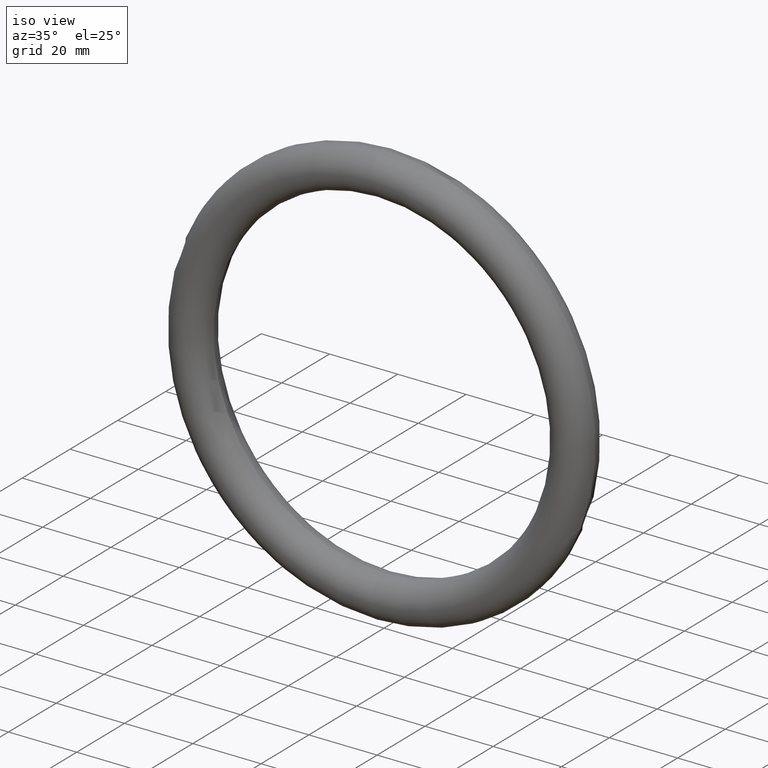
[diagram: clean part render]
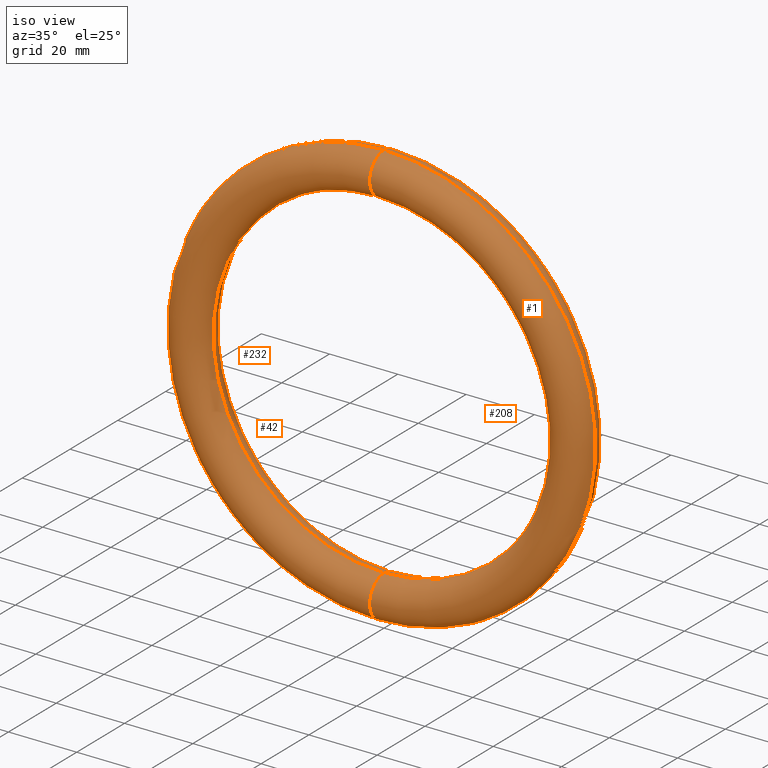
[diagram: same view with one multi-face feature highlighted, each face labeled with its STEP entity id]
A machine part, iso view. The highlighted faces form ONE feature: a constant-radius fillet chain: 4 tangent blend faces with common blend radius 6 mm. The faces share edges in the B-rep.
Their STEP definitions:
[1] entity #232 (Torus):
#3 = ORIENTED_EDGE ( 'NONE', *, *, #117, .T. ) ;
#8 = ORIENTED_EDGE ( 'NONE', *, *, #238, .F. ) ;
#26 = EDGE_CURVE ( 'NONE', #192, #32, #93, .T. ) ;
#32 = VERTEX_POINT ( 'NONE', #168 ) ;
#37 = FACE_OUTER_BOUND ( 'NONE', #227, .T. ) ;
#41 = ORIENTED_EDGE ( 'NONE', *, *, #246, .F. ) ;
#46 = DIRECTION ( 'NONE',  ( 0.000000000000000000, 0.000000000000000000, 1.000000000000000000 ) ) ;
#48 = DIRECTION ( 'NONE',  ( -1.000000000000000000, 0.000000000000000000, 0.000000000000000000 ) ) ;
#53 = CIRCLE ( 'NONE', #110, 5.999999999999998224 ) ;
#54 = AXIS2_PLACEMENT_3D ( 'NONE', #126, #234, #90 ) ;
#61 = DIRECTION ( 'NONE',  ( 0.000000000000000000, 0.000000000000000000, -1.000000000000000000 ) ) ;
#69 = CARTESIAN_POINT ( 'NONE',  ( 0.000000000000000000, 0.000000000000000000, -56.00000000000000000 ) ) ;
#81 = VERTEX_POINT ( 'NONE', #212 ) ;
#90 = DIRECTION ( 'NONE',  ( 0.000000000000000000, 0.000000000000000000, -1.000000000000000000 ) ) ;
#93 = CIRCLE ( 'NONE', #250, 62.00000000000000000 ) ;
#109 = DIRECTION ( 'NONE',  ( 0.000000000000000000, 0.000000000000000000, -1.000000000000000000 ) ) ;
#110 = AXIS2_PLACEMENT_3D ( 'NONE', #69, #48, #46 ) ;
#117 = EDGE_CURVE ( 'NONE', #32, #81, #53, .T. ) ;
#126 = CARTESIAN_POINT ( 'NONE',  ( 0.000000000000000000, 0.000000000000000000, 0.000000000000000000 ) ) ;
#127 = AXIS2_PLACEMENT_3D ( 'NONE', #172, #148, #61 ) ;
#137 = TOROIDAL_SURFACE ( 'NONE', #54, 56.00000000000000000, 5.999999999999994671 ) ;
#140 = AXIS2_PLACEMENT_3D ( 'NONE', #197, #160, #245 ) ;
#141 = CIRCLE ( 'NONE', #140, 5.999999999999998224 ) ;
#142 = DIRECTION ( 'NONE',  ( -0.000000000000000000, -1.000000000000000000, -0.000000000000000000 ) ) ;
#148 = DIRECTION ( 'NONE',  ( -0.000000000000000000, -1.000000000000000000, -0.000000000000000000 ) ) ;
#150 = CARTESIAN_POINT ( 'NONE',  ( 7.592810154713590230E-15, 0.000000000000000000, 62.00000000000000000 ) ) ;
#160 = DIRECTION ( 'NONE',  ( 1.000000000000000000, 0.000000000000000000, -1.224646799147353207E-16 ) ) ;
#164 = CIRCLE ( 'NONE', #127, 50.00000000000000000 ) ;
#168 = CARTESIAN_POINT ( 'NONE',  ( 0.000000000000000000, 0.000000000000000000, -62.00000000000000000 ) ) ;
#172 = CARTESIAN_POINT ( 'NONE',  ( 0.000000000000000000, 7.347880794884112834E-16, 0.000000000000000000 ) ) ;
#192 = VERTEX_POINT ( 'NONE', #150 ) ;
#197 = CARTESIAN_POINT ( 'NONE',  ( 6.858022075225178552E-15, 0.000000000000000000, 56.00000000000000000 ) ) ;
#212 = CARTESIAN_POINT ( 'NONE',  ( 0.000000000000000000, 0.000000000000000000, -50.00000000000000000 ) ) ;
#227 = EDGE_LOOP ( 'NONE', ( #41, #237, #3, #8 ) ) ;
#232 = ADVANCED_FACE ( 'NONE', ( #37 ), #137, .T. ) ;
#234 = DIRECTION ( 'NONE',  ( -0.000000000000000000, -1.000000000000000000, -0.000000000000000000 ) ) ;
#235 = CARTESIAN_POINT ( 'NONE',  ( 6.123233995736766874E-15, 0.000000000000000000, 50.00000000000000000 ) ) ;
#237 = ORIENTED_EDGE ( 'NONE', *, *, #26, .T. ) ;
#238 = EDGE_CURVE ( 'NONE', #240, #81, #164, .T. ) ;
#240 = VERTEX_POINT ( 'NONE', #235 ) ;
#245 = DIRECTION ( 'NONE',  ( -1.224646799147352221E-16, 0.000000000000000000, -1.000000000000000000 ) ) ;
#246 = EDGE_CURVE ( 'NONE', #192, #240, #141, .T. ) ;
#250 = AXIS2_PLACEMENT_3D ( 'NONE', #270, #142, #109 ) ;
#270 = CARTESIAN_POINT ( 'NONE',  ( 0.000000000000000000, 0.000000000000000000, 0.000000000000000000 ) ) ;
[2] entity #42 (Torus):
#15 = EDGE_CURVE ( 'NONE', #240, #192, #71, .T. ) ;
#26 = EDGE_CURVE ( 'NONE', #192, #32, #93, .T. ) ;
#32 = VERTEX_POINT ( 'NONE', #168 ) ;
#40 = DIRECTION ( 'NONE',  ( 1.000000000000000000, 0.000000000000000000, -1.224646799147353207E-16 ) ) ;
#42 = ADVANCED_FACE ( 'NONE', ( #196 ), #170, .T. ) ;
#44 = EDGE_CURVE ( 'NONE', #81, #32, #252, .T. ) ;
#61 = DIRECTION ( 'NONE',  ( 0.000000000000000000, 0.000000000000000000, -1.000000000000000000 ) ) ;
#68 = DIRECTION ( 'NONE',  ( -1.224646799147352221E-16, 0.000000000000000000, -1.000000000000000000 ) ) ;
#71 = CIRCLE ( 'NONE', #269, 5.999999999999998224 ) ;
#72 = DIRECTION ( 'NONE',  ( 0.000000000000000000, 0.000000000000000000, -1.000000000000000000 ) ) ;
#81 = VERTEX_POINT ( 'NONE', #212 ) ;
#88 = DIRECTION ( 'NONE',  ( -1.000000000000000000, 0.000000000000000000, 0.000000000000000000 ) ) ;
#93 = CIRCLE ( 'NONE', #250, 62.00000000000000000 ) ;
#109 = DIRECTION ( 'NONE',  ( 0.000000000000000000, 0.000000000000000000, -1.000000000000000000 ) ) ;
#127 = AXIS2_PLACEMENT_3D ( 'NONE', #172, #148, #61 ) ;
#129 = DIRECTION ( 'NONE',  ( 0.000000000000000000, 0.000000000000000000, 1.000000000000000000 ) ) ;
#133 = ORIENTED_EDGE ( 'NONE', *, *, #238, .T. ) ;
#142 = DIRECTION ( 'NONE',  ( -0.000000000000000000, -1.000000000000000000, -0.000000000000000000 ) ) ;
#146 = CARTESIAN_POINT ( 'NONE',  ( 0.000000000000000000, 0.000000000000000000, 0.000000000000000000 ) ) ;
#148 = DIRECTION ( 'NONE',  ( -0.000000000000000000, -1.000000000000000000, -0.000000000000000000 ) ) ;
#150 = CARTESIAN_POINT ( 'NONE',  ( 7.592810154713590230E-15, 0.000000000000000000, 62.00000000000000000 ) ) ;
#161 = AXIS2_PLACEMENT_3D ( 'NONE', #215, #88, #129 ) ;
#164 = CIRCLE ( 'NONE', #127, 50.00000000000000000 ) ;
#168 = CARTESIAN_POINT ( 'NONE',  ( 0.000000000000000000, 0.000000000000000000, -62.00000000000000000 ) ) ;
#170 = TOROIDAL_SURFACE ( 'NONE', #260, 56.00000000000000000, 5.999999999999994671 ) ;
#171 = CARTESIAN_POINT ( 'NONE',  ( 6.858022075225178552E-15, 0.000000000000000000, 56.00000000000000000 ) ) ;
#172 = CARTESIAN_POINT ( 'NONE',  ( 0.000000000000000000, 7.347880794884112834E-16, 0.000000000000000000 ) ) ;
#187 = DIRECTION ( 'NONE',  ( -0.000000000000000000, -1.000000000000000000, -0.000000000000000000 ) ) ;
#189 = EDGE_LOOP ( 'NONE', ( #268, #241, #133, #203 ) ) ;
#192 = VERTEX_POINT ( 'NONE', #150 ) ;
#196 = FACE_OUTER_BOUND ( 'NONE', #189, .T. ) ;
#203 = ORIENTED_EDGE ( 'NONE', *, *, #44, .T. ) ;
#212 = CARTESIAN_POINT ( 'NONE',  ( 0.000000000000000000, 0.000000000000000000, -50.00000000000000000 ) ) ;
#215 = CARTESIAN_POINT ( 'NONE',  ( 0.000000000000000000, 0.000000000000000000, -56.00000000000000000 ) ) ;
#235 = CARTESIAN_POINT ( 'NONE',  ( 6.123233995736766874E-15, 0.000000000000000000, 50.00000000000000000 ) ) ;
#238 = EDGE_CURVE ( 'NONE', #240, #81, #164, .T. ) ;
#240 = VERTEX_POINT ( 'NONE', #235 ) ;
#241 = ORIENTED_EDGE ( 'NONE', *, *, #15, .F. ) ;
#250 = AXIS2_PLACEMENT_3D ( 'NONE', #270, #142, #109 ) ;
#252 = CIRCLE ( 'NONE', #161, 5.999999999999998224 ) ;
#260 = AXIS2_PLACEMENT_3D ( 'NONE', #146, #187, #72 ) ;
#268 = ORIENTED_EDGE ( 'NONE', *, *, #26, .F. ) ;
#269 = AXIS2_PLACEMENT_3D ( 'NONE', #171, #40, #68 ) ;
#270 = CARTESIAN_POINT ( 'NONE',  ( 0.000000000000000000, 0.000000000000000000, 0.000000000000000000 ) ) ;
[3] entity #1 (Torus):
#1 = ADVANCED_FACE ( 'NONE', ( #256 ), #128, .T. ) ;
#4 = DIRECTION ( 'NONE',  ( -0.000000000000000000, -1.000000000000000000, -0.000000000000000000 ) ) ;
#15 = EDGE_CURVE ( 'NONE', #240, #192, #71, .T. ) ;
#25 = CIRCLE ( 'NONE', #213, 62.00000000000000000 ) ;
#32 = VERTEX_POINT ( 'NONE', #168 ) ;
#40 = DIRECTION ( 'NONE',  ( 1.000000000000000000, 0.000000000000000000, -1.224646799147353207E-16 ) ) ;
#43 = DIRECTION ( 'NONE',  ( -0.000000000000000000, -1.000000000000000000, -0.000000000000000000 ) ) ;
#44 = EDGE_CURVE ( 'NONE', #81, #32, #252, .T. ) ;
#49 = DIRECTION ( 'NONE',  ( 0.000000000000000000, 0.000000000000000000, -1.000000000000000000 ) ) ;
#62 = AXIS2_PLACEMENT_3D ( 'NONE', #186, #43, #206 ) ;
#68 = DIRECTION ( 'NONE',  ( -1.224646799147352221E-16, 0.000000000000000000, -1.000000000000000000 ) ) ;
#71 = CIRCLE ( 'NONE', #269, 5.999999999999998224 ) ;
#74 = ORIENTED_EDGE ( 'NONE', *, *, #44, .F. ) ;
#81 = VERTEX_POINT ( 'NONE', #212 ) ;
#88 = DIRECTION ( 'NONE',  ( -1.000000000000000000, 0.000000000000000000, 0.000000000000000000 ) ) ;
#95 = ORIENTED_EDGE ( 'NONE', *, *, #178, .F. ) ;
#108 = ORIENTED_EDGE ( 'NONE', *, *, #205, .T. ) ;
#123 = EDGE_LOOP ( 'NONE', ( #95, #74, #108, #145 ) ) ;
#128 = TOROIDAL_SURFACE ( 'NONE', #62, 56.00000000000000000, 5.999999999999994671 ) ;
#129 = DIRECTION ( 'NONE',  ( 0.000000000000000000, 0.000000000000000000, 1.000000000000000000 ) ) ;
#145 = ORIENTED_EDGE ( 'NONE', *, *, #15, .T. ) ;
#150 = CARTESIAN_POINT ( 'NONE',  ( 7.592810154713590230E-15, 0.000000000000000000, 62.00000000000000000 ) ) ;
#161 = AXIS2_PLACEMENT_3D ( 'NONE', #215, #88, #129 ) ;
#168 = CARTESIAN_POINT ( 'NONE',  ( 0.000000000000000000, 0.000000000000000000, -62.00000000000000000 ) ) ;
#171 = CARTESIAN_POINT ( 'NONE',  ( 6.858022075225178552E-15, 0.000000000000000000, 56.00000000000000000 ) ) ;
#177 = AXIS2_PLACEMENT_3D ( 'NONE', #193, #4, #49 ) ;
#178 = EDGE_CURVE ( 'NONE', #32, #192, #25, .T. ) ;
#186 = CARTESIAN_POINT ( 'NONE',  ( 0.000000000000000000, 0.000000000000000000, 0.000000000000000000 ) ) ;
#192 = VERTEX_POINT ( 'NONE', #150 ) ;
#193 = CARTESIAN_POINT ( 'NONE',  ( 0.000000000000000000, 7.347880794884112834E-16, 0.000000000000000000 ) ) ;
#195 = CIRCLE ( 'NONE', #177, 50.00000000000000000 ) ;
#205 = EDGE_CURVE ( 'NONE', #81, #240, #195, .T. ) ;
#206 = DIRECTION ( 'NONE',  ( 0.000000000000000000, 0.000000000000000000, -1.000000000000000000 ) ) ;
#210 = DIRECTION ( 'NONE',  ( -0.000000000000000000, -1.000000000000000000, -0.000000000000000000 ) ) ;
#212 = CARTESIAN_POINT ( 'NONE',  ( 0.000000000000000000, 0.000000000000000000, -50.00000000000000000 ) ) ;
#213 = AXIS2_PLACEMENT_3D ( 'NONE', #254, #210, #253 ) ;
#215 = CARTESIAN_POINT ( 'NONE',  ( 0.000000000000000000, 0.000000000000000000, -56.00000000000000000 ) ) ;
#235 = CARTESIAN_POINT ( 'NONE',  ( 6.123233995736766874E-15, 0.000000000000000000, 50.00000000000000000 ) ) ;
#240 = VERTEX_POINT ( 'NONE', #235 ) ;
#252 = CIRCLE ( 'NONE', #161, 5.999999999999998224 ) ;
#253 = DIRECTION ( 'NONE',  ( 0.000000000000000000, 0.000000000000000000, -1.000000000000000000 ) ) ;
#254 = CARTESIAN_POINT ( 'NONE',  ( 0.000000000000000000, 0.000000000000000000, 0.000000000000000000 ) ) ;
#256 = FACE_OUTER_BOUND ( 'NONE', #123, .T. ) ;
#269 = AXIS2_PLACEMENT_3D ( 'NONE', #171, #40, #68 ) ;
[4] entity #208 (Torus):
#4 = DIRECTION ( 'NONE',  ( -0.000000000000000000, -1.000000000000000000, -0.000000000000000000 ) ) ;
#23 = CARTESIAN_POINT ( 'NONE',  ( 0.000000000000000000, 0.000000000000000000, 0.000000000000000000 ) ) ;
#25 = CIRCLE ( 'NONE', #213, 62.00000000000000000 ) ;
#32 = VERTEX_POINT ( 'NONE', #168 ) ;
#46 = DIRECTION ( 'NONE',  ( 0.000000000000000000, 0.000000000000000000, 1.000000000000000000 ) ) ;
#48 = DIRECTION ( 'NONE',  ( -1.000000000000000000, 0.000000000000000000, 0.000000000000000000 ) ) ;
#49 = DIRECTION ( 'NONE',  ( 0.000000000000000000, 0.000000000000000000, -1.000000000000000000 ) ) ;
#53 = CIRCLE ( 'NONE', #110, 5.999999999999998224 ) ;
#69 = CARTESIAN_POINT ( 'NONE',  ( 0.000000000000000000, 0.000000000000000000, -56.00000000000000000 ) ) ;
#81 = VERTEX_POINT ( 'NONE', #212 ) ;
#85 = ORIENTED_EDGE ( 'NONE', *, *, #246, .T. ) ;
#87 = FACE_OUTER_BOUND ( 'NONE', #185, .T. ) ;
#91 = DIRECTION ( 'NONE',  ( -0.000000000000000000, -1.000000000000000000, -0.000000000000000000 ) ) ;
#110 = AXIS2_PLACEMENT_3D ( 'NONE', #69, #48, #46 ) ;
#117 = EDGE_CURVE ( 'NONE', #32, #81, #53, .T. ) ;
#131 = ORIENTED_EDGE ( 'NONE', *, *, #178, .T. ) ;
#140 = AXIS2_PLACEMENT_3D ( 'NONE', #197, #160, #245 ) ;
#141 = CIRCLE ( 'NONE', #140, 5.999999999999998224 ) ;
#149 = ORIENTED_EDGE ( 'NONE', *, *, #117, .F. ) ;
#150 = CARTESIAN_POINT ( 'NONE',  ( 7.592810154713590230E-15, 0.000000000000000000, 62.00000000000000000 ) ) ;
#160 = DIRECTION ( 'NONE',  ( 1.000000000000000000, 0.000000000000000000, -1.224646799147353207E-16 ) ) ;
#168 = CARTESIAN_POINT ( 'NONE',  ( 0.000000000000000000, 0.000000000000000000, -62.00000000000000000 ) ) ;
#177 = AXIS2_PLACEMENT_3D ( 'NONE', #193, #4, #49 ) ;
#178 = EDGE_CURVE ( 'NONE', #32, #192, #25, .T. ) ;
#185 = EDGE_LOOP ( 'NONE', ( #149, #131, #85, #218 ) ) ;
#190 = AXIS2_PLACEMENT_3D ( 'NONE', #23, #91, #191 ) ;
#191 = DIRECTION ( 'NONE',  ( 0.000000000000000000, 0.000000000000000000, -1.000000000000000000 ) ) ;
#192 = VERTEX_POINT ( 'NONE', #150 ) ;
#193 = CARTESIAN_POINT ( 'NONE',  ( 0.000000000000000000, 7.347880794884112834E-16, 0.000000000000000000 ) ) ;
#195 = CIRCLE ( 'NONE', #177, 50.00000000000000000 ) ;
#197 = CARTESIAN_POINT ( 'NONE',  ( 6.858022075225178552E-15, 0.000000000000000000, 56.00000000000000000 ) ) ;
#205 = EDGE_CURVE ( 'NONE', #81, #240, #195, .T. ) ;
#208 = ADVANCED_FACE ( 'NONE', ( #87 ), #211, .T. ) ;
#210 = DIRECTION ( 'NONE',  ( -0.000000000000000000, -1.000000000000000000, -0.000000000000000000 ) ) ;
#211 = TOROIDAL_SURFACE ( 'NONE', #190, 56.00000000000000000, 5.999999999999994671 ) ;
#212 = CARTESIAN_POINT ( 'NONE',  ( 0.000000000000000000, 0.000000000000000000, -50.00000000000000000 ) ) ;
#213 = AXIS2_PLACEMENT_3D ( 'NONE', #254, #210, #253 ) ;
#218 = ORIENTED_EDGE ( 'NONE', *, *, #205, .F. ) ;
#235 = CARTESIAN_POINT ( 'NONE',  ( 6.123233995736766874E-15, 0.000000000000000000, 50.00000000000000000 ) ) ;
#240 = VERTEX_POINT ( 'NONE', #235 ) ;
#245 = DIRECTION ( 'NONE',  ( -1.224646799147352221E-16, 0.000000000000000000, -1.000000000000000000 ) ) ;
#246 = EDGE_CURVE ( 'NONE', #192, #240, #141, .T. ) ;
#253 = DIRECTION ( 'NONE',  ( 0.000000000000000000, 0.000000000000000000, -1.000000000000000000 ) ) ;
#254 = CARTESIAN_POINT ( 'NONE',  ( 0.000000000000000000, 0.000000000000000000, 0.000000000000000000 ) ) ;